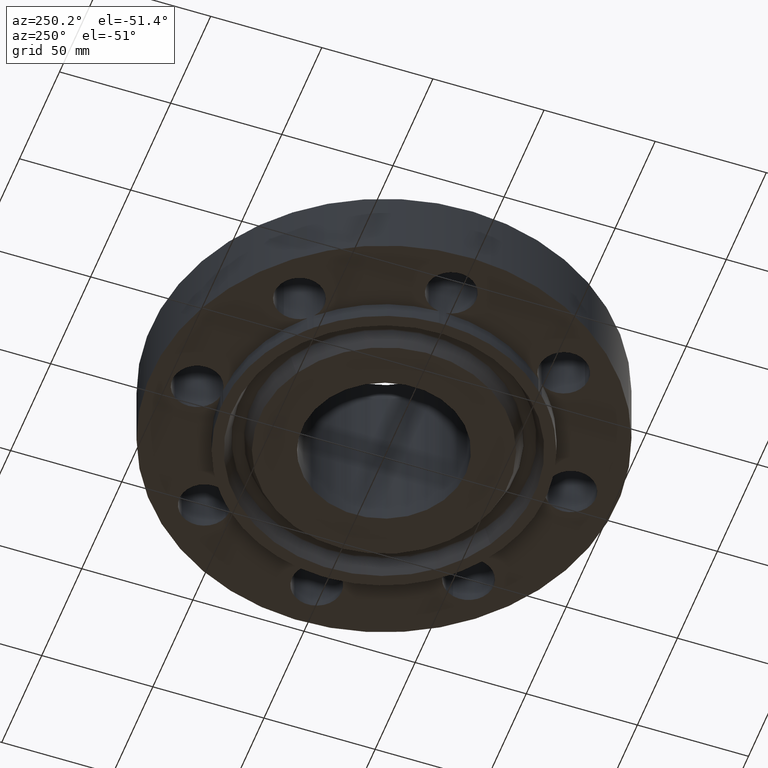
[diagram: clean part render]
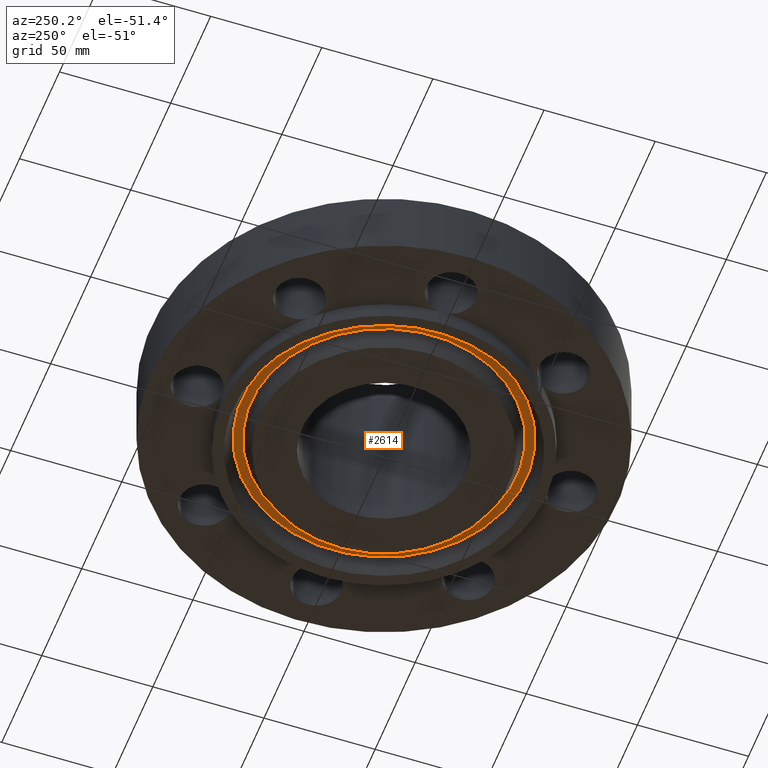
[diagram: same view with one face highlighted and labeled with its STEP entity id]
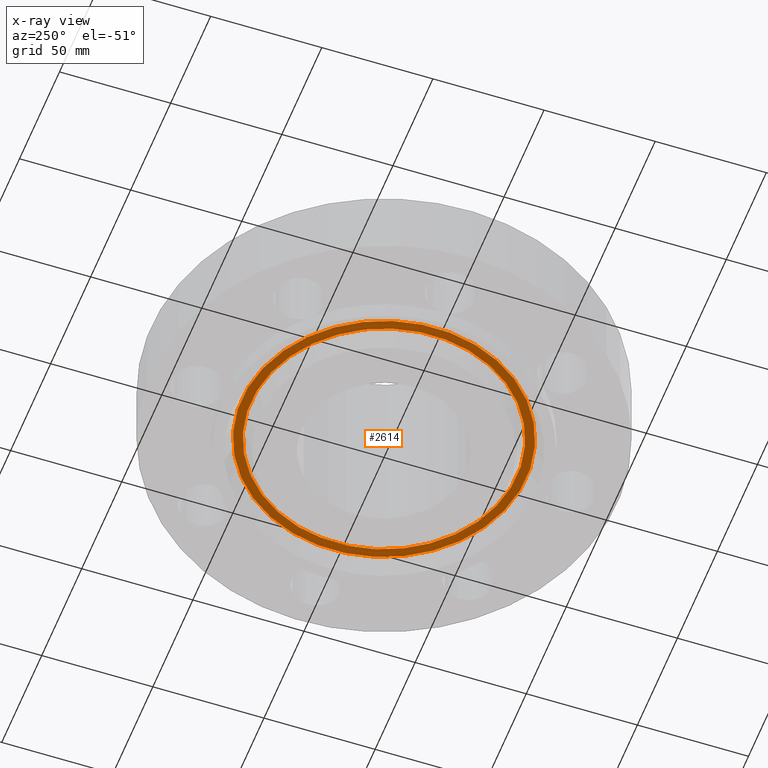
[diagram: x-ray of the same camera — body ghosted, the highlighted face saturated]
A machine part, auxiliary view. The second image highlights one B-rep face of the part: STEP entity #2614.
The next image is the same camera in x-ray: the body ghosted, the highlighted face saturated — about 0% of this face is hidden behind the body in this view.
In plain terms, the highlighted planar face has unit normal (0, 0, -1).
Its self-contained STEP definition (entity closure, byte-faithful):
#165=AXIS2_PLACEMENT_3D('Plane Axis2P3D',#162,#163,#164) ;
#1905=AXIS2_PLACEMENT_3D('Circle Axis2P3D',#1903,#1904,$) ;
#1936=AXIS2_PLACEMENT_3D('Circle Axis2P3D',#1934,#1935,$) ;
#2598=AXIS2_PLACEMENT_3D('Circle Axis2P3D',#2596,#2597,$) ;
#2607=AXIS2_PLACEMENT_3D('Circle Axis2P3D',#2605,#2606,$) ;
#162=CARTESIAN_POINT('Axis2P3D Location',(0.,2.87500000001,0.)) ;
#1900=CARTESIAN_POINT('Vertex',(-1.20749119597,2.2102978083,0.)) ;
#1903=CARTESIAN_POINT('Axis2P3D Location',(0.,0.,0.)) ;
#1907=CARTESIAN_POINT('Vertex',(1.20749119597,-2.2102978083,0.)) ;
#1934=CARTESIAN_POINT('Axis2P3D Location',(0.,0.,0.)) ;
#2596=CARTESIAN_POINT('Axis2P3D Location',(2.09805925913E-016,-4.66496482738E-012,0.)) ;
#2600=CARTESIAN_POINT('Vertex',(1.12970830477,-2.06791718095,0.)) ;
#2602=CARTESIAN_POINT('Vertex',(-1.12970830477,2.06791718094,0.)) ;
#2605=CARTESIAN_POINT('Axis2P3D Location',(3.08537097883E-011,1.21900040368E-011,0.)) ;
#163=DIRECTION('Axis2P3D Direction',(0.,0.,-0.0393700787402)) ;
#164=DIRECTION('Axis2P3D XDirection',(0.0393700787402,0.,0.)) ;
#1904=DIRECTION('Axis2P3D Direction',(0.,0.,0.0393700787402)) ;
#1935=DIRECTION('Axis2P3D Direction',(0.,0.,0.0393700787402)) ;
#2597=DIRECTION('Axis2P3D Direction',(0.,0.,-0.0393700787402)) ;
#2606=DIRECTION('Axis2P3D Direction',(0.,0.,-0.0393700787402)) ;
#2593=ORIENTED_EDGE('',*,*,#1909,.F.) ;
#2594=ORIENTED_EDGE('',*,*,#1938,.F.) ;
#2611=ORIENTED_EDGE('',*,*,#2604,.T.) ;
#2612=ORIENTED_EDGE('',*,*,#2609,.T.) ;
#2613=FACE_BOUND('',#2610,.T.) ;
#2614=ADVANCED_FACE('PartBody',(#2595,#2613),#166,.T.) ;
#1906=CIRCLE('generated circle',#1905,2.51862093014) ;
#1937=CIRCLE('generated circle',#1936,2.51862093014) ;
#2599=CIRCLE('generated circle',#2598,2.35637906991) ;
#2608=CIRCLE('generated circle',#2607,2.35637906991) ;
#1909=EDGE_CURVE('',#1901,#1908,#1906,.T.) ;
#1938=EDGE_CURVE('',#1908,#1901,#1937,.T.) ;
#2604=EDGE_CURVE('',#2601,#2603,#2599,.F.) ;
#2609=EDGE_CURVE('',#2603,#2601,#2608,.F.) ;
#2592=EDGE_LOOP('',(#2593,#2594)) ;
#2610=EDGE_LOOP('',(#2611,#2612)) ;
#2595=FACE_OUTER_BOUND('',#2592,.T.) ;
#166=PLANE('',#165) ;
#1901=VERTEX_POINT('',#1900) ;
#1908=VERTEX_POINT('',#1907) ;
#2601=VERTEX_POINT('',#2600) ;
#2603=VERTEX_POINT('',#2602) ;